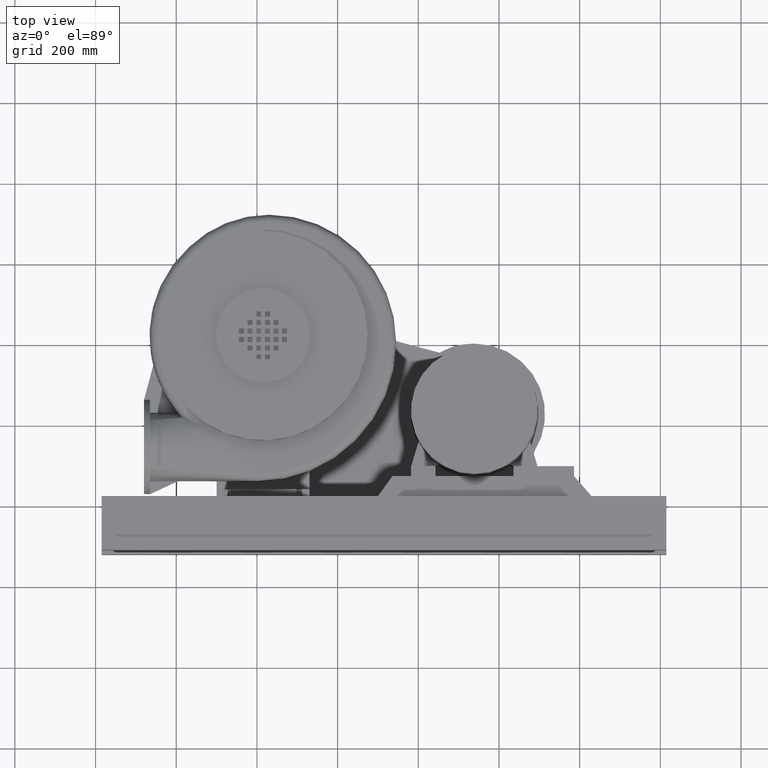
[diagram: clean part render]
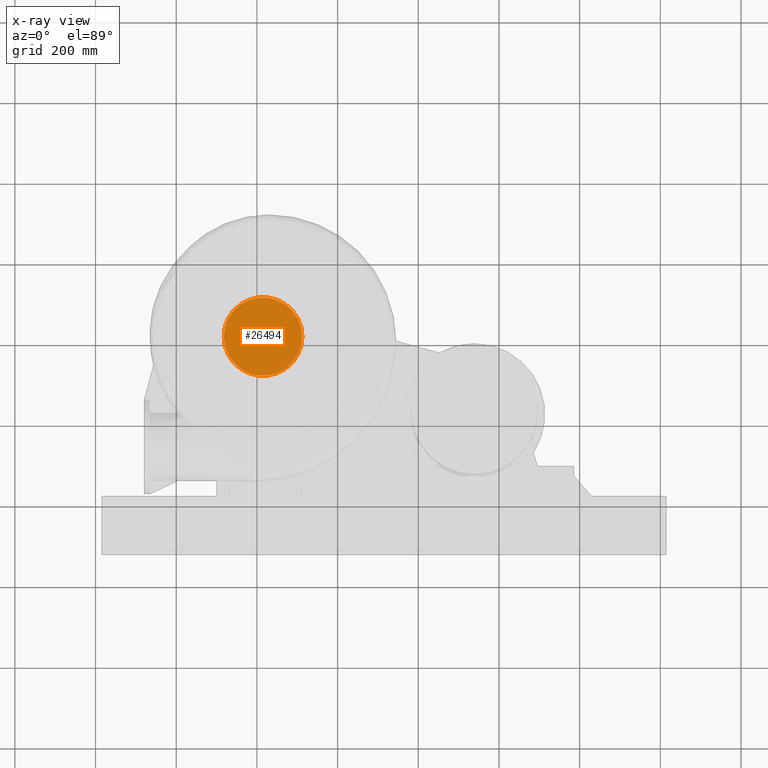
[diagram: x-ray — body ghosted, one internal face saturated and labeled with its STEP entity id]
A machine part, top view, then the same camera in x-ray: the body is ghosted and one INTERNAL B-rep face — a face not visible from any outside direction — is saturated and labeled: STEP entity #26494.
In plain terms, the highlighted planar face has unit normal (0, 0, 1).
Its self-contained STEP definition (entity closure, byte-faithful):
#26478=CARTESIAN_POINT('',(15.000000000000071,89.999999999999844,-83.499999999999972));
#26479=DIRECTION('',(0.0,0.0,1.0));
#26480=DIRECTION('',(1.0,0.0,0.0));
#26481=AXIS2_PLACEMENT_3D('',#26478,#26479,#26480);
#26482=PLANE('',#26481);
#26483=CARTESIAN_POINT('',(-82.499999999999943,14.999999999999847,-83.500000000000028));
#26484=VERTEX_POINT('',#26483);
#26485=CARTESIAN_POINT('',(15.000000000000053,14.999999999999837,-83.499999999999957));
#26486=DIRECTION('',(0.0,0.0,1.0));
#26487=DIRECTION('',(1.0,0.0,0.0));
#26488=AXIS2_PLACEMENT_3D('',#26485,#26486,#26487);
#26489=CIRCLE('',#26488,97.500000000000000);
#26490=EDGE_CURVE('',#26484,#26484,#26489,.T.);
#26491=ORIENTED_EDGE('',*,*,#26490,.T.);
#26492=EDGE_LOOP('',(#26491));
#26493=FACE_OUTER_BOUND('',#26492,.T.);
#26494=ADVANCED_FACE('',(#26493),#26482,.T.);